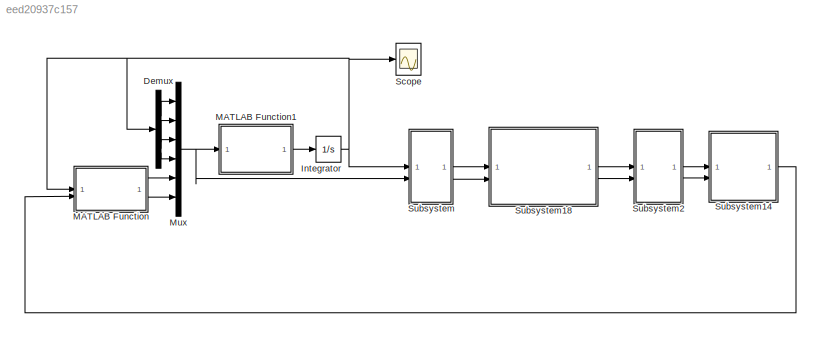
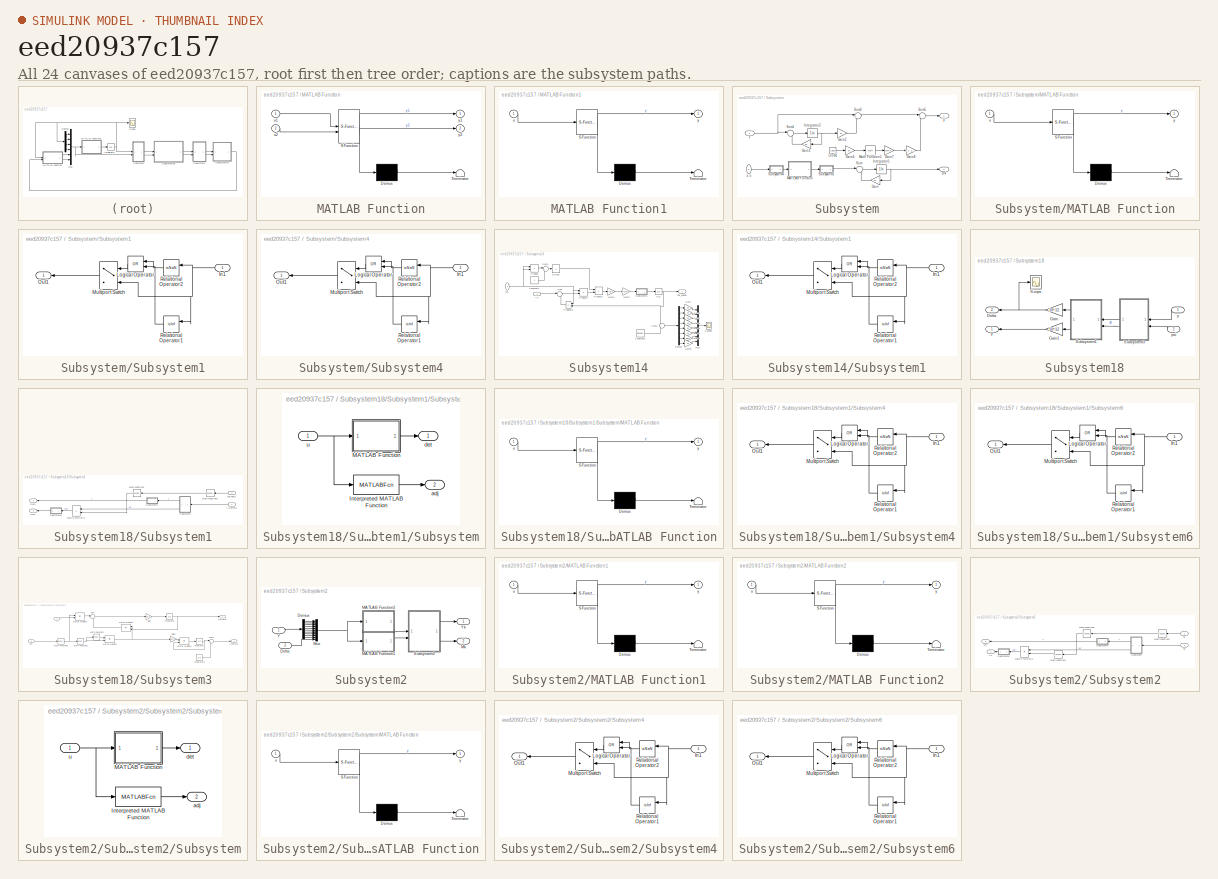
[diagram: thumbnail index - all 24 canvases of the model, root first then tree order]
MODEL slx_eed20937c157
KIND model
CONFIG AbsTol = auto
CONFIG EnableMultiTasking = off
CONFIG FixedStep = 10^-5
CONFIG MaxStep = auto
CONFIG MinStep = auto
CONFIG RelTol = 1e-3
CONFIG SampleTimeConstraint = Unconstrained
CONFIG SolverName = ode1
CONFIG StartTime = 0.0
CONFIG StopTime = 25
BLOCK [Demux] Demux
BLOCK [Integrator] Integrator
  InitialCondition = [-1; 1;0.2;-0.2]*100
BLOCK [SubSystem] MATLAB Function
  ErrorFcn = Stateflow.Translate.translate
  PermitHierarchicalResolution = ExplicitOnly
  SFBlockType = MATLAB Function
  TreatAsAtomicUnit = on
BLOCK [Demux] MATLAB Function/ Demux 
  Outputs = 1
BLOCK [S-Function] MATLAB Function/ SFunction 
  EnableBusSupport = on
  FunctionName = sf_sfun
  PortCounts = [2 3]
  SFcnIsStateOwnerBlock = off
  SFunctionDeploymentMode = off
  Tag = Stateflow S-Function 2
BLOCK [Terminator] MATLAB Function/ Terminator 
BLOCK [Inport] MATLAB Function/u1
BLOCK [Inport] MATLAB Function/u2
  Port = 2
BLOCK [Outport] MATLAB Function/y1
BLOCK [Outport] MATLAB Function/y2
  Port = 2
BLOCK [SubSystem] MATLAB Function1
  ErrorFcn = Stateflow.Translate.translate
  PermitHierarchicalResolution = ExplicitOnly
  SFBlockType = MATLAB Function
  TreatAsAtomicUnit = on
BLOCK [Demux] MATLAB Function1/ Demux 
  Outputs = 1
BLOCK [S-Function] MATLAB Function1/ SFunction 
  EnableBusSupport = on
  FunctionName = sf_sfun
  PortCounts = [1 2]
  SFcnIsStateOwnerBlock = off
  SFunctionDeploymentMode = off
  Tag = Stateflow S-Function 4
BLOCK [Terminator] MATLAB Function1/ Terminator 
BLOCK [Inport] MATLAB Function1/u
BLOCK [Outport] MATLAB Function1/y
BLOCK [Mux] Mux
  DisplayOption = bar
  Inputs = 6
BLOCK [Scope] Scope
  Floating = off
  NumInputPorts = 1
  ScopeSpecificationString = Simulink.scopes.TimeScopeBlockCfg('CurrentConfiguration', extmgr.ConfigurationSet(extmgr.Configuration('Core','General UI',true,'FigureColor',[1 1 1]),extmgr.Configuration('Core','Source UI',true),extmgr.Configuration('Sources','WiredSimulink',true,'DataLoggingVariableName','ScopeData1'),extmgr.Configuration('Visuals','Time Domain',true,'PlotType','Line','SerializedDisplays',{struct('MinYLimReal',...<+1617ch>
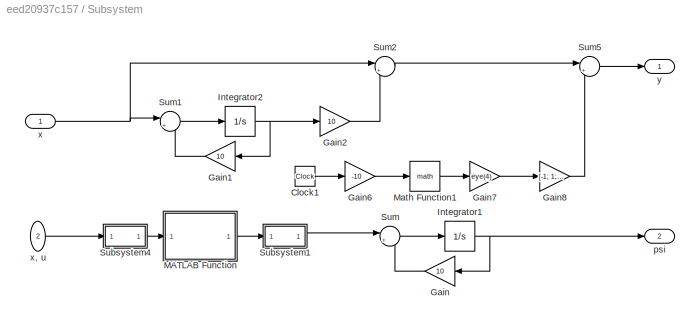
BLOCK [SubSystem] Subsystem
BLOCK [Clock] Subsystem/Clock1
BLOCK [Gain] Subsystem/Gain
  Gain = 10
BLOCK [Gain] Subsystem/Gain1
  Gain = 10
BLOCK [Gain] Subsystem/Gain2
  Gain = 10
BLOCK [Gain] Subsystem/Gain6
  Gain = -10
  NameLocation = top
BLOCK [Gain] Subsystem/Gain7
  Gain = eye(4)
BLOCK [Gain] Subsystem/Gain8
  Gain = [-1; 1;0.2;-0.2]*100
  Multiplication = Matrix(u*K)
BLOCK [Integrator] Subsystem/Integrator1
BLOCK [Integrator] Subsystem/Integrator2
BLOCK [SubSystem] Subsystem/MATLAB Function
  ErrorFcn = Stateflow.Translate.translate
  PermitHierarchicalResolution = ExplicitOnly
  SFBlockType = MATLAB Function
  TreatAsAtomicUnit = on
BLOCK [Demux] Subsystem/MATLAB Function/ Demux 
  Outputs = 1
BLOCK [S-Function] Subsystem/MATLAB Function/ SFunction 
  EnableBusSupport = on
  FunctionName = sf_sfun
  PortCounts = [1 2]
  SFcnIsStateOwnerBlock = off
  SFunctionDeploymentMode = off
  Tag = Stateflow S-Function 5
BLOCK [Terminator] Subsystem/MATLAB Function/ Terminator 
BLOCK [Inport] Subsystem/MATLAB Function/u
BLOCK [Outport] Subsystem/MATLAB Function/y
BLOCK [Math] Subsystem/Math Function1
  SignedPower = on
BLOCK [SubSystem] Subsystem/Subsystem1
BLOCK [Inport] Subsystem/Subsystem1/In1
BLOCK [Logic] Subsystem/Subsystem1/Logical Operator
  AllPortsSameDT = off
  NameLocation = top
  Operator = OR
  OutDataTypeStr = boolean
BLOCK [MultiPortSwitch] Subsystem/Subsystem1/Multiport Switch
  DataPortIndices = {1,0}
  DataPortOrder = Specify indices
  InputSameDT = off
  NameLocation = top
  SaturateOnIntegerOverflow = off
BLOCK [Outport] Subsystem/Subsystem1/Out1
BLOCK [RelationalOperator] Subsystem/Subsystem1/Relational Operator1
  InputSameDT = off
  Operator = isInf
  OutDataTypeStr = boolean
  RndMeth = Simplest
BLOCK [RelationalOperator] Subsystem/Subsystem1/Relational Operator2
  InputSameDT = off
  Operator = isNaN
  OutDataTypeStr = boolean
  RndMeth = Simplest
BLOCK [SubSystem] Subsystem/Subsystem4
BLOCK [Inport] Subsystem/Subsystem4/In1
BLOCK [Logic] Subsystem/Subsystem4/Logical Operator
  AllPortsSameDT = off
  NameLocation = top
  Operator = OR
  OutDataTypeStr = boolean
BLOCK [MultiPortSwitch] Subsystem/Subsystem4/Multiport Switch
  DataPortIndices = {1,0}
  DataPortOrder = Specify indices
  InputSameDT = off
  NameLocation = top
  SaturateOnIntegerOverflow = off
BLOCK [Outport] Subsystem/Subsystem4/Out1
BLOCK [RelationalOperator] Subsystem/Subsystem4/Relational Operator1
  InputSameDT = off
  Operator = isInf
  OutDataTypeStr = boolean
  RndMeth = Simplest
BLOCK [RelationalOperator] Subsystem/Subsystem4/Relational Operator2
  InputSameDT = off
  Operator = isNaN
  OutDataTypeStr = boolean
  RndMeth = Simplest
BLOCK [Sum] Subsystem/Sum
  Inputs = |+-
BLOCK [Sum] Subsystem/Sum1
  Inputs = |+-
BLOCK [Sum] Subsystem/Sum2
  Inputs = |+-
BLOCK [Sum] Subsystem/Sum5
  Inputs = |+-
BLOCK [Outport] Subsystem/psi
  Port = 2
BLOCK [Inport] Subsystem/x
BLOCK [Inport] Subsystem/x, u
  NameLocation = top
  Port = 2
BLOCK [Outport] Subsystem/y
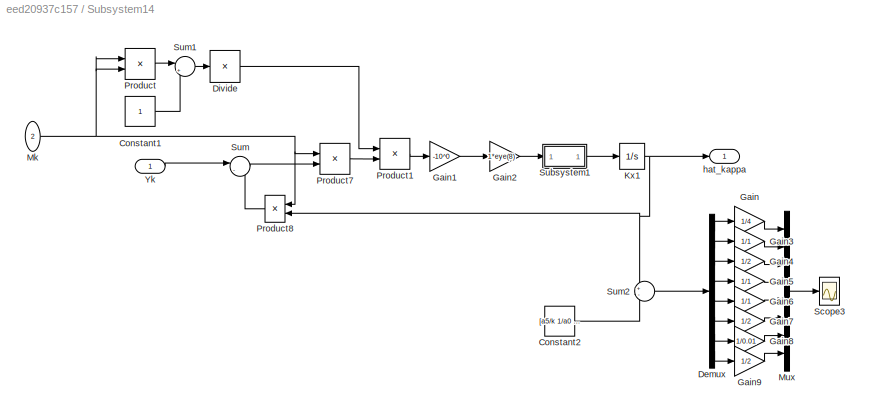
BLOCK [SubSystem] Subsystem14
BLOCK [Constant] Subsystem14/Constant1
BLOCK [Constant] Subsystem14/Constant2
  Value = [a5/k 1/a0 a1 a7 a2 a3 a4 3-a6]'
BLOCK [Demux] Subsystem14/Demux
  Outputs = 8
BLOCK [Product] Subsystem14/Divide
  Inputs = /
BLOCK [Gain] Subsystem14/Gain
  Gain = 1/4
BLOCK [Gain] Subsystem14/Gain1
  Gain = -10^0
BLOCK [Gain] Subsystem14/Gain2
  Gain = 1*eye(8)
  Multiplication = Matrix(K*u)
BLOCK [Gain] Subsystem14/Gain3
  Gain = 1/1
BLOCK [Gain] Subsystem14/Gain4
  Gain = 1/2
BLOCK [Gain] Subsystem14/Gain5
  Gain = 1/1
BLOCK [Gain] Subsystem14/Gain6
  Gain = 1/1
BLOCK [Gain] Subsystem14/Gain7
  Gain = 1/2
BLOCK [Gain] Subsystem14/Gain8
  Gain = 1/0.01
BLOCK [Gain] Subsystem14/Gain9
  Gain = 1/2
BLOCK [Integrator] Subsystem14/Kx1
  InitialCondition = [5 0 0 0 0 0 0 0]'
BLOCK [Inport] Subsystem14/Mk
  NameLocation = top
  Port = 2
BLOCK [Mux] Subsystem14/Mux
  DisplayOption = bar
  Inputs = 8
BLOCK [Product] Subsystem14/Product
BLOCK [Product] Subsystem14/Product1
BLOCK [Product] Subsystem14/Product7
BLOCK [Product] Subsystem14/Product8
  NameLocation = top
BLOCK [Scope] Subsystem14/Scope3
  Floating = off
  NumInputPorts = 1
  ScopeSpecificationString = Simulink.scopes.TimeScopeBlockCfg('CurrentConfiguration', extmgr.ConfigurationSet(extmgr.Configuration('Core','General UI',true,'FigureColor',[1 1 1]),extmgr.Configuration('Core','Source UI',true),extmgr.Configuration('Sources','WiredSimulink',true,'DataLoggingVariableName','ScopeData4'),extmgr.Configuration('Visuals','Time Domain',true,'PlotType','Line','SerializedDisplays',{struct('MinYLimReal',...<+1720ch>
BLOCK [SubSystem] Subsystem14/Subsystem1
BLOCK [Inport] Subsystem14/Subsystem1/In1
BLOCK [Logic] Subsystem14/Subsystem1/Logical Operator
  AllPortsSameDT = off
  NameLocation = top
  Operator = OR
  OutDataTypeStr = boolean
BLOCK [MultiPortSwitch] Subsystem14/Subsystem1/Multiport Switch
  DataPortIndices = {1,0}
  DataPortOrder = Specify indices
  InputSameDT = off
  NameLocation = top
  SaturateOnIntegerOverflow = off
BLOCK [Outport] Subsystem14/Subsystem1/Out1
BLOCK [RelationalOperator] Subsystem14/Subsystem1/Relational Operator1
  InputSameDT = off
  Operator = isInf
  OutDataTypeStr = boolean
  RndMeth = Simplest
BLOCK [RelationalOperator] Subsystem14/Subsystem1/Relational Operator2
  InputSameDT = off
  Operator = isNaN
  OutDataTypeStr = boolean
  RndMeth = Simplest
BLOCK [Sum] Subsystem14/Sum
  Inputs = |-+
BLOCK [Sum] Subsystem14/Sum1
  Inputs = |++
BLOCK [Sum] Subsystem14/Sum2
  Inputs = +-
BLOCK [Inport] Subsystem14/Yk
BLOCK [Outport] Subsystem14/hat_kappa
BLOCK [SubSystem] Subsystem18
BLOCK [Outport] Subsystem18/Delta
  NameLocation = top
  Port = 2
BLOCK [Gain] Subsystem18/Gain
  Gain = 10^12
  NameLocation = top
BLOCK [Gain] Subsystem18/Gain1
  Gain = 10^12
  NameLocation = top
BLOCK [Scope] Subsystem18/Scope
  Floating = off
  NumInputPorts = 1
  ScopeSpecificationString = Simulink.scopes.TimeScopeBlockCfg('CurrentConfiguration', extmgr.ConfigurationSet(extmgr.Configuration('Core','General UI',true,'FigureColor',[1 1 1]),extmgr.Configuration('Core','Source UI',true),extmgr.Configuration('Sources','WiredSimulink',true,'DataLoggingVariableName','ScopeData1'),extmgr.Configuration('Visuals','Time Domain',true,'PlotType','Line','SerializedDisplays',{struct('MinYLimReal',...<+1576ch>
BLOCK [SubSystem] Subsystem18/Subsystem1
  NameLocation = top
BLOCK [Inport] Subsystem18/Subsystem1/I-Summa
  Port = 2
BLOCK [Math] Subsystem18/Subsystem1/Math Function1
  NameLocation = top
  Operator = transpose
  SignedPower = on
BLOCK [Math] Subsystem18/Subsystem1/Math Function2
  NameLocation = top
  Operator = transpose
  SignedPower = on
BLOCK [Product] Subsystem18/Subsystem1/Matrix Multiply1
  Multiplication = Matrix(*)
  NameLocation = top
BLOCK [Outport] Subsystem18/Subsystem1/Out1
BLOCK [Outport] Subsystem18/Subsystem1/Out2
  Port = 2
BLOCK [SubSystem] Subsystem18/Subsystem1/Subsystem
  NameLocation = top
BLOCK [MATLABFcn] Subsystem18/Subsystem1/Subsystem/Interpreted MATLAB Function
  MATLABFcn = adjoint(u)
  Output1D = off
BLOCK [SubSystem] Subsystem18/Subsystem1/Subsystem/MATLAB Function
  ErrorFcn = Stateflow.Translate.translate
  PermitHierarchicalResolution = ExplicitOnly
  SFBlockType = MATLAB Function
  TreatAsAtomicUnit = on
BLOCK [Demux] Subsystem18/Subsystem1/Subsystem/MATLAB Function/ Demux 
  Outputs = 1
BLOCK [S-Function] Subsystem18/Subsystem1/Subsystem/MATLAB Function/ SFunction 
  EnableBusSupport = on
  FunctionName = sf_sfun
  PortCounts = [1 2]
  SFcnIsStateOwnerBlock = off
  SFunctionDeploymentMode = off
  Tag = Stateflow S-Function 3
BLOCK [Terminator] Subsystem18/Subsystem1/Subsystem/MATLAB Function/ Terminator 
BLOCK [Inport] Subsystem18/Subsystem1/Subsystem/MATLAB Function/u
BLOCK [Outport] Subsystem18/Subsystem1/Subsystem/MATLAB Function/y
BLOCK [Outport] Subsystem18/Subsystem1/Subsystem/adj
  Port = 2
BLOCK [Outport] Subsystem18/Subsystem1/Subsystem/det
BLOCK [Inport] Subsystem18/Subsystem1/Subsystem/u
BLOCK [SubSystem] Subsystem18/Subsystem1/Subsystem4
BLOCK [Inport] Subsystem18/Subsystem1/Subsystem4/In1
BLOCK [Logic] Subsystem18/Subsystem1/Subsystem4/Logical Operator
  AllPortsSameDT = off
  NameLocation = top
  Operator = OR
  OutDataTypeStr = boolean
BLOCK [MultiPortSwitch] Subsystem18/Subsystem1/Subsystem4/Multiport Switch
  DataPortIndices = {1,0}
  DataPortOrder = Specify indices
  InputSameDT = off
  NameLocation = top
  SaturateOnIntegerOverflow = off
BLOCK [Outport] Subsystem18/Subsystem1/Subsystem4/Out1
BLOCK [RelationalOperator] Subsystem18/Subsystem1/Subsystem4/Relational Operator1
  InputSameDT = off
  Operator = isInf
  OutDataTypeStr = boolean
  RndMeth = Simplest
BLOCK [RelationalOperator] Subsystem18/Subsystem1/Subsystem4/Relational Operator2
  InputSameDT = off
  Operator = isNaN
  OutDataTypeStr = boolean
  RndMeth = Simplest
BLOCK [SubSystem] Subsystem18/Subsystem1/Subsystem6
BLOCK [Inport] Subsystem18/Subsystem1/Subsystem6/In1
BLOCK [Logic] Subsystem18/Subsystem1/Subsystem6/Logical Operator
  AllPortsSameDT = off
  NameLocation = top
  Operator = OR
  OutDataTypeStr = boolean
BLOCK [MultiPortSwitch] Subsystem18/Subsystem1/Subsystem6/Multiport Switch
  DataPortIndices = {1,0}
  DataPortOrder = Specify indices
  InputSameDT = off
  NameLocation = top
  SaturateOnIntegerOverflow = off
BLOCK [Outport] Subsystem18/Subsystem1/Subsystem6/Out1
BLOCK [RelationalOperator] Subsystem18/Subsystem1/Subsystem6/Relational Operator1
  InputSameDT = off
  Operator = isInf
  OutDataTypeStr = boolean
  RndMeth = Simplest
BLOCK [RelationalOperator] Subsystem18/Subsystem1/Subsystem6/Relational Operator2
  InputSameDT = off
  Operator = isNaN
  OutDataTypeStr = boolean
  RndMeth = Simplest
BLOCK [Inport] Subsystem18/Subsystem1/vartheta
BLOCK [SubSystem] Subsystem18/Subsystem3
  NameLocation = top
BLOCK [Gain] Subsystem18/Subsystem3/Gain
  Gain = -10^0
BLOCK [Gain] Subsystem18/Subsystem3/Gain1
  Gain = -10^0
BLOCK [Outport] Subsystem18/Subsystem3/I-Summa
  Port = 2
BLOCK [Integrator] Subsystem18/Subsystem3/Integrator
  InitialCondition = zeros(10,1)
BLOCK [Integrator] Subsystem18/Subsystem3/Integrator1
  InitialCondition = eye(10)
BLOCK [Integrator] Subsystem18/Subsystem3/Integrator2
  InitialCondition = eye(10)
BLOCK [Math] Subsystem18/Subsystem3/Math Function1
  Operator = transpose
BLOCK [Math] Subsystem18/Subsystem3/Math Function2
  Operator = transpose
BLOCK [Math] Subsystem18/Subsystem3/Math Function3
  Operator = transpose
BLOCK [Product] Subsystem18/Subsystem3/Matrix Multiply1
  Multiplication = Matrix(*)
  NameLocation = top
BLOCK [Product] Subsystem18/Subsystem3/Matrix Multiply2
  Multiplication = Matrix(*)
BLOCK [Product] Subsystem18/Subsystem3/Matrix Multiply4
  Multiplication = Matrix(*)
BLOCK [Product] Subsystem18/Subsystem3/Matrix Multiply5
  Multiplication = Matrix(*)
BLOCK [Sum] Subsystem18/Subsystem3/Sum
  Inputs = |-+
BLOCK [Sum] Subsystem18/Subsystem3/Sum1
  Inputs = |-+
BLOCK [Inport] Subsystem18/Subsystem3/psi
  NameLocation = top
  Port = 2
BLOCK [Outport] Subsystem18/Subsystem3/vartheta
BLOCK [Inport] Subsystem18/Subsystem3/y
BLOCK [Outport] Subsystem18/Y
  NameLocation = top
BLOCK [Inport] Subsystem18/psi
  NameLocation = top
  Port = 2
BLOCK [Inport] Subsystem18/y
  NameLocation = top
BLOCK [SubSystem] Subsystem2
BLOCK [Inport] Subsystem2/Delta
  Port = 2
BLOCK [Demux] Subsystem2/Demux
  Outputs = 10
BLOCK [SubSystem] Subsystem2/MATLAB Function1
  ErrorFcn = Stateflow.Translate.translate
  PermitHierarchicalResolution = ExplicitOnly
  SFBlockType = MATLAB Function
  TreatAsAtomicUnit = on
BLOCK [Demux] Subsystem2/MATLAB Function1/ Demux 
  Outputs = 1
BLOCK [S-Function] Subsystem2/MATLAB Function1/ SFunction 
  EnableBusSupport = on
  FunctionName = sf_sfun
  PortCounts = [1 2]
  SFcnIsStateOwnerBlock = off
  SFunctionDeploymentMode = off
  Tag = Stateflow S-Function 6
BLOCK [Terminator] Subsystem2/MATLAB Function1/ Terminator 
BLOCK [Inport] Subsystem2/MATLAB Function1/u
BLOCK [Outport] Subsystem2/MATLAB Function1/y
BLOCK [SubSystem] Subsystem2/MATLAB Function2
  ErrorFcn = Stateflow.Translate.translate
  PermitHierarchicalResolution = ExplicitOnly
  SFBlockType = MATLAB Function
  TreatAsAtomicUnit = on
BLOCK [Demux] Subsystem2/MATLAB Function2/ Demux 
  Outputs = 1
BLOCK [S-Function] Subsystem2/MATLAB Function2/ SFunction 
  EnableBusSupport = on
  FunctionName = sf_sfun
  PortCounts = [1 2]
  SFcnIsStateOwnerBlock = off
  SFunctionDeploymentMode = off
  Tag = Stateflow S-Function 7
BLOCK [Terminator] Subsystem2/MATLAB Function2/ Terminator 
BLOCK [Inport] Subsystem2/MATLAB Function2/u
BLOCK [Outport] Subsystem2/MATLAB Function2/y
BLOCK [Outport] Subsystem2/Mk
  Port = 2
BLOCK [Mux] Subsystem2/Mux
  DisplayOption = bar
  Inputs = 11
BLOCK [SubSystem] Subsystem2/Subsystem2
BLOCK [Math] Subsystem2/Subsystem2/Math Function1
  NameLocation = top
  Operator = transpose
  SignedPower = on
BLOCK [Math] Subsystem2/Subsystem2/Math Function2
  NameLocation = top
  Operator = transpose
  SignedPower = on
BLOCK [Math] Subsystem2/Subsystem2/Math Function3
  NameLocation = top
  Operator = transpose
  SignedPower = on
BLOCK [Product] Subsystem2/Subsystem2/Matrix Multiply1
  Multiplication = Matrix(*)
  NameLocation = top
BLOCK [Outport] Subsystem2/Subsystem2/Mk
  Port = 2
BLOCK [SubSystem] Subsystem2/Subsystem2/Subsystem
  NameLocation = top
BLOCK [MATLABFcn] Subsystem2/Subsystem2/Subsystem/Interpreted MATLAB Function
  MATLABFcn = adjoint(u)
  Output1D = off
BLOCK [SubSystem] Subsystem2/Subsystem2/Subsystem/MATLAB Function
  ErrorFcn = Stateflow.Translate.translate
  PermitHierarchicalResolution = ExplicitOnly
  SFBlockType = MATLAB Function
  TreatAsAtomicUnit = on
BLOCK [Demux] Subsystem2/Subsystem2/Subsystem/MATLAB Function/ Demux 
  Outputs = 1
BLOCK [S-Function] Subsystem2/Subsystem2/Subsystem/MATLAB Function/ SFunction 
  EnableBusSupport = on
  FunctionName = sf_sfun
  PortCounts = [1 2]
  SFcnIsStateOwnerBlock = off
  SFunctionDeploymentMode = off
  Tag = Stateflow S-Function 9
BLOCK [Terminator] Subsystem2/Subsystem2/Subsystem/MATLAB Function/ Terminator 
BLOCK [Inport] Subsystem2/Subsystem2/Subsystem/MATLAB Function/u
BLOCK [Outport] Subsystem2/Subsystem2/Subsystem/MATLAB Function/y
BLOCK [Outport] Subsystem2/Subsystem2/Subsystem/adj
  Port = 2
BLOCK [Outport] Subsystem2/Subsystem2/Subsystem/det
BLOCK [Inport] Subsystem2/Subsystem2/Subsystem/u
BLOCK [SubSystem] Subsystem2/Subsystem2/Subsystem4
BLOCK [Inport] Subsystem2/Subsystem2/Subsystem4/In1
BLOCK [Logic] Subsystem2/Subsystem2/Subsystem4/Logical Operator
  AllPortsSameDT = off
  NameLocation = top
  Operator = OR
  OutDataTypeStr = boolean
BLOCK [MultiPortSwitch] Subsystem2/Subsystem2/Subsystem4/Multiport Switch
  DataPortIndices = {1,0}
  DataPortOrder = Specify indices
  InputSameDT = off
  NameLocation = top
  SaturateOnIntegerOverflow = off
BLOCK [Outport] Subsystem2/Subsystem2/Subsystem4/Out1
BLOCK [RelationalOperator] Subsystem2/Subsystem2/Subsystem4/Relational Operator1
  InputSameDT = off
  Operator = isInf
  OutDataTypeStr = boolean
  RndMeth = Simplest
BLOCK [RelationalOperator] Subsystem2/Subsystem2/Subsystem4/Relational Operator2
  InputSameDT = off
  Operator = isNaN
  OutDataTypeStr = boolean
  RndMeth = Simplest
BLOCK [SubSystem] Subsystem2/Subsystem2/Subsystem6
BLOCK [Inport] Subsystem2/Subsystem2/Subsystem6/In1
BLOCK [Logic] Subsystem2/Subsystem2/Subsystem6/Logical Operator
  AllPortsSameDT = off
  NameLocation = top
  Operator = OR
  OutDataTypeStr = boolean
BLOCK [MultiPortSwitch] Subsystem2/Subsystem2/Subsystem6/Multiport Switch
  DataPortIndices = {1,0}
  DataPortOrder = Specify indices
  InputSameDT = off
  NameLocation = top
  SaturateOnIntegerOverflow = off
BLOCK [Outport] Subsystem2/Subsystem2/Subsystem6/Out1
BLOCK [RelationalOperator] Subsystem2/Subsystem2/Subsystem6/Relational Operator1
  InputSameDT = off
  Operator = isInf
  OutDataTypeStr = boolean
  RndMeth = Simplest
BLOCK [RelationalOperator] Subsystem2/Subsystem2/Subsystem6/Relational Operator2
  InputSameDT = off
  Operator = isNaN
  OutDataTypeStr = boolean
  RndMeth = Simplest
BLOCK [Inport] Subsystem2/Subsystem2/Tg
  Port = 2
BLOCK [Inport] Subsystem2/Subsystem2/Ts
BLOCK [Outport] Subsystem2/Subsystem2/Yk
BLOCK [Inport] Subsystem2/Y
BLOCK [Outport] Subsystem2/Yk
LINE Demux:1 -> Mux:1
LINE Demux:2 -> Mux:2
LINE Demux:3 -> Mux:3
LINE Demux:4 -> Mux:4
NET Integrator:1 -> Demux:1, MATLAB Function:1, Scope:1, Subsystem:1
LINE MATLAB Function1:1 -> Integrator:1
LINE MATLAB Function:1 -> Mux:5
LINE MATLAB Function:2 -> Mux:6
NET Mux:1 -> MATLAB Function1:1, Subsystem:2
LINE Subsystem/Clock1:1 -> Subsystem/Gain6:1
LINE Subsystem/Gain1:1 -> Subsystem/Sum1:2
LINE Subsystem/Gain2:1 -> Subsystem/Sum2:2
LINE Subsystem/Gain6:1 -> Subsystem/Math Function1:1
LINE Subsystem/Gain7:1 -> Subsystem/Gain8:1
LINE Subsystem/Gain8:1 -> Subsystem/Sum5:2
LINE Subsystem/Gain:1 -> Subsystem/Sum:2
NET Subsystem/Integrator1:1 -> Subsystem/Gain:1, Subsystem/psi:1
NET Subsystem/Integrator2:1 -> Subsystem/Gain1:1, Subsystem/Gain2:1
LINE Subsystem/MATLAB Function:1 -> Subsystem/Subsystem1:1
LINE Subsystem/Math Function1:1 -> Subsystem/Gain7:1
NET Subsystem/Subsystem1/In1:1 -> Subsystem/Subsystem1/Multiport Switch:3, Subsystem/Subsystem1/Relational Operator1:1, Subsystem/Subsystem1/Relational Operator2:1
LINE Subsystem/Subsystem1/Logical Operator:1 -> Subsystem/Subsystem1/Multiport Switch:1
LINE Subsystem/Subsystem1/Multiport Switch:1 -> Subsystem/Subsystem1/Out1:1
LINE Subsystem/Subsystem1/Relational Operator1:1 -> Subsystem/Subsystem1/Logical Operator:2
LINE Subsystem/Subsystem1/Relational Operator2:1 -> Subsystem/Subsystem1/Logical Operator:1
LINE Subsystem/Subsystem1:1 -> Subsystem/Sum:1
NET Subsystem/Subsystem4/In1:1 -> Subsystem/Subsystem4/Multiport Switch:3, Subsystem/Subsystem4/Relational Operator1:1, Subsystem/Subsystem4/Relational Operator2:1
LINE Subsystem/Subsystem4/Logical Operator:1 -> Subsystem/Subsystem4/Multiport Switch:1
LINE Subsystem/Subsystem4/Multiport Switch:1 -> Subsystem/Subsystem4/Out1:1
LINE Subsystem/Subsystem4/Relational Operator1:1 -> Subsystem/Subsystem4/Logical Operator:2
LINE Subsystem/Subsystem4/Relational Operator2:1 -> Subsystem/Subsystem4/Logical Operator:1
LINE Subsystem/Subsystem4:1 -> Subsystem/MATLAB Function:1
LINE Subsystem/Sum1:1 -> Subsystem/Integrator2:1
LINE Subsystem/Sum2:1 -> Subsystem/Sum5:1
LINE Subsystem/Sum5:1 -> Subsystem/y:1
LINE Subsystem/Sum:1 -> Subsystem/Integrator1:1
LINE Subsystem/x, u:1 -> Subsystem/Subsystem4:1
NET Subsystem/x:1 -> Subsystem/Sum1:1, Subsystem/Sum2:1
LINE Subsystem14/Constant1:1 -> Subsystem14/Sum1:2
LINE Subsystem14/Constant2:1 -> Subsystem14/Sum2:2
LINE Subsystem14/Demux:1 -> Subsystem14/Gain:1
LINE Subsystem14/Demux:2 -> Subsystem14/Gain3:1
LINE Subsystem14/Demux:3 -> Subsystem14/Gain4:1
LINE Subsystem14/Demux:4 -> Subsystem14/Gain5:1
LINE Subsystem14/Demux:5 -> Subsystem14/Gain6:1
LINE Subsystem14/Demux:6 -> Subsystem14/Gain7:1
LINE Subsystem14/Demux:7 -> Subsystem14/Gain8:1
LINE Subsystem14/Demux:8 -> Subsystem14/Gain9:1
LINE Subsystem14/Divide:1 -> Subsystem14/Product1:1
LINE Subsystem14/Gain1:1 -> Subsystem14/Gain2:1
LINE Subsystem14/Gain2:1 -> Subsystem14/Subsystem1:1
LINE Subsystem14/Gain3:1 -> Subsystem14/Mux:2
LINE Subsystem14/Gain4:1 -> Subsystem14/Mux:3
LINE Subsystem14/Gain5:1 -> Subsystem14/Mux:4
LINE Subsystem14/Gain6:1 -> Subsystem14/Mux:5
LINE Subsystem14/Gain7:1 -> Subsystem14/Mux:6
LINE Subsystem14/Gain8:1 -> Subsystem14/Mux:7
LINE Subsystem14/Gain9:1 -> Subsystem14/Mux:8
LINE Subsystem14/Gain:1 -> Subsystem14/Mux:1
NET Subsystem14/Kx1:1 -> Subsystem14/Product8:2, Subsystem14/Sum2:1, Subsystem14/hat_kappa:1
NET Subsystem14/Mk:1 -> Subsystem14/Product7:1, Subsystem14/Product8:1, Subsystem14/Product:1, Subsystem14/Product:2
LINE Subsystem14/Mux:1 -> Subsystem14/Scope3:1
LINE Subsystem14/Product1:1 -> Subsystem14/Gain1:1
LINE Subsystem14/Product7:1 -> Subsystem14/Product1:2
LINE Subsystem14/Product8:1 -> Subsystem14/Sum:2
LINE Subsystem14/Product:1 -> Subsystem14/Sum1:1
NET Subsystem14/Subsystem1/In1:1 -> Subsystem14/Subsystem1/Multiport Switch:3, Subsystem14/Subsystem1/Relational Operator1:1, Subsystem14/Subsystem1/Relational Operator2:1
LINE Subsystem14/Subsystem1/Logical Operator:1 -> Subsystem14/Subsystem1/Multiport Switch:1
LINE Subsystem14/Subsystem1/Multiport Switch:1 -> Subsystem14/Subsystem1/Out1:1
LINE Subsystem14/Subsystem1/Relational Operator1:1 -> Subsystem14/Subsystem1/Logical Operator:2
LINE Subsystem14/Subsystem1/Relational Operator2:1 -> Subsystem14/Subsystem1/Logical Operator:1
LINE Subsystem14/Subsystem1:1 -> Subsystem14/Kx1:1
LINE Subsystem14/Sum1:1 -> Subsystem14/Divide:1
LINE Subsystem14/Sum2:1 -> Subsystem14/Demux:1
LINE Subsystem14/Sum:1 -> Subsystem14/Product7:2
LINE Subsystem14/Yk:1 -> Subsystem14/Sum:1
LINE Subsystem14:1 -> MATLAB Function:2
LINE Subsystem18/Gain1:1 -> Subsystem18/Y:1
NET Subsystem18/Gain:1 -> Subsystem18/Delta:1, Subsystem18/Scope:1
LINE Subsystem18/Subsystem1/I-Summa:1 -> Subsystem18/Subsystem1/Subsystem:1
LINE Subsystem18/Subsystem1/Math Function1:1 -> Subsystem18/Subsystem1/Matrix Multiply1:2
LINE Subsystem18/Subsystem1/Math Function2:1 -> Subsystem18/Subsystem1/Math Function1:1
LINE Subsystem18/Subsystem1/Matrix Multiply1:1 -> Subsystem18/Subsystem1/Subsystem6:1
LINE Subsystem18/Subsystem1/Subsystem/Interpreted MATLAB Function:1 -> Subsystem18/Subsystem1/Subsystem/adj:1
LINE Subsystem18/Subsystem1/Subsystem/MATLAB Function:1 -> Subsystem18/Subsystem1/Subsystem/det:1
NET Subsystem18/Subsystem1/Subsystem/u:1 -> Subsystem18/Subsystem1/Subsystem/Interpreted MATLAB Function:1, Subsystem18/Subsystem1/Subsystem/MATLAB Function:1
NET Subsystem18/Subsystem1/Subsystem4/In1:1 -> Subsystem18/Subsystem1/Subsystem4/Multiport Switch:3, Subsystem18/Subsystem1/Subsystem4/Relational Operator1:1, Subsystem18/Subsystem1/Subsystem4/Relational Operator2:1
LINE Subsystem18/Subsystem1/Subsystem4/Logical Operator:1 -> Subsystem18/Subsystem1/Subsystem4/Multiport Switch:1
LINE Subsystem18/Subsystem1/Subsystem4/Multiport Switch:1 -> Subsystem18/Subsystem1/Subsystem4/Out1:1
LINE Subsystem18/Subsystem1/Subsystem4/Relational Operator1:1 -> Subsystem18/Subsystem1/Subsystem4/Logical Operator:2
LINE Subsystem18/Subsystem1/Subsystem4/Relational Operator2:1 -> Subsystem18/Subsystem1/Subsystem4/Logical Operator:1
LINE Subsystem18/Subsystem1/Subsystem4:1 -> Subsystem18/Subsystem1/Out1:1
NET Subsystem18/Subsystem1/Subsystem6/In1:1 -> Subsystem18/Subsystem1/Subsystem6/Multiport Switch:3, Subsystem18/Subsystem1/Subsystem6/Relational Operator1:1, Subsystem18/Subsystem1/Subsystem6/Relational Operator2:1
LINE Subsystem18/Subsystem1/Subsystem6/Logical Operator:1 -> Subsystem18/Subsystem1/Subsystem6/Multiport Switch:1
LINE Subsystem18/Subsystem1/Subsystem6/Multiport Switch:1 -> Subsystem18/Subsystem1/Subsystem6/Out1:1
LINE Subsystem18/Subsystem1/Subsystem6/Relational Operator1:1 -> Subsystem18/Subsystem1/Subsystem6/Logical Operator:2
LINE Subsystem18/Subsystem1/Subsystem6/Relational Operator2:1 -> Subsystem18/Subsystem1/Subsystem6/Logical Operator:1
LINE Subsystem18/Subsystem1/Subsystem6:1 -> Subsystem18/Subsystem1/Out2:1
LINE Subsystem18/Subsystem1/Subsystem:1 -> Subsystem18/Subsystem1/Subsystem4:1
LINE Subsystem18/Subsystem1/Subsystem:2 -> Subsystem18/Subsystem1/Matrix Multiply1:1
LINE Subsystem18/Subsystem1/vartheta:1 -> Subsystem18/Subsystem1/Math Function2:1
LINE Subsystem18/Subsystem1:1 -> Subsystem18/Gain:1
LINE Subsystem18/Subsystem1:2 -> Subsystem18/Gain1:1
LINE Subsystem18/Subsystem3/Gain1:1 -> Subsystem18/Subsystem3/Matrix Multiply5:1
LINE Subsystem18/Subsystem3/Gain:1 -> Subsystem18/Subsystem3/Integrator:1
NET Subsystem18/Subsystem3/Integrator1:1 -> Subsystem18/Subsystem3/Matrix Multiply5:2, Subsystem18/Subsystem3/Sum1:1
LINE Subsystem18/Subsystem3/Integrator2:1 -> Subsystem18/Subsystem3/Sum1:2
NET Subsystem18/Subsystem3/Integrator:1 -> Subsystem18/Subsystem3/Matrix Multiply1:2, Subsystem18/Subsystem3/vartheta:1
LINE Subsystem18/Subsystem3/Math Function1:1 -> Subsystem18/Subsystem3/Matrix Multiply2:1
NET Subsystem18/Subsystem3/Math Function2:1 -> Subsystem18/Subsystem3/Math Function1:1, Subsystem18/Subsystem3/Matrix Multiply2:2
NET Subsystem18/Subsystem3/Math Function3:1 -> Subsystem18/Subsystem3/Math Function2:1, Subsystem18/Subsystem3/Matrix Multiply4:1
LINE Subsystem18/Subsystem3/Matrix Multiply1:1 -> Subsystem18/Subsystem3/Sum:2
NET Subsystem18/Subsystem3/Matrix Multiply2:1 -> Subsystem18/Subsystem3/Gain1:1, Subsystem18/Subsystem3/Matrix Multiply1:1
LINE Subsystem18/Subsystem3/Matrix Multiply4:1 -> Subsystem18/Subsystem3/Sum:1
LINE Subsystem18/Subsystem3/Matrix Multiply5:1 -> Subsystem18/Subsystem3/Integrator1:1
LINE Subsystem18/Subsystem3/Sum1:1 -> Subsystem18/Subsystem3/I-Summa:1
LINE Subsystem18/Subsystem3/Sum:1 -> Subsystem18/Subsystem3/Gain:1
LINE Subsystem18/Subsystem3/psi:1 -> Subsystem18/Subsystem3/Math Function3:1
LINE Subsystem18/Subsystem3/y:1 -> Subsystem18/Subsystem3/Matrix Multiply4:2
LINE Subsystem18/Subsystem3:1 -> Subsystem18/Subsystem1:1
LINE Subsystem18/Subsystem3:2 -> Subsystem18/Subsystem1:2
LINE Subsystem18/psi:1 -> Subsystem18/Subsystem3:2
LINE Subsystem18/y:1 -> Subsystem18/Subsystem3:1
LINE Subsystem18:1 -> Subsystem2:1
LINE Subsystem18:2 -> Subsystem2:2
LINE Subsystem2/Delta:1 -> Subsystem2/Mux:11
LINE Subsystem2/Demux:1 -> Subsystem2/Mux:1
LINE Subsystem2/Demux:10 -> Subsystem2/Mux:10
LINE Subsystem2/Demux:2 -> Subsystem2/Mux:2
LINE Subsystem2/Demux:3 -> Subsystem2/Mux:3
LINE Subsystem2/Demux:4 -> Subsystem2/Mux:4
LINE Subsystem2/Demux:5 -> Subsystem2/Mux:5
LINE Subsystem2/Demux:6 -> Subsystem2/Mux:6
LINE Subsystem2/Demux:7 -> Subsystem2/Mux:7
LINE Subsystem2/Demux:8 -> Subsystem2/Mux:8
LINE Subsystem2/Demux:9 -> Subsystem2/Mux:9
LINE Subsystem2/MATLAB Function1:1 -> Subsystem2/Subsystem2:2
LINE Subsystem2/MATLAB Function2:1 -> Subsystem2/Subsystem2:1
NET Subsystem2/Mux:1 -> Subsystem2/MATLAB Function1:1, Subsystem2/MATLAB Function2:1
LINE Subsystem2/Subsystem2/Math Function1:1 -> Subsystem2/Subsystem2/Math Function3:1
LINE Subsystem2/Subsystem2/Math Function2:1 -> Subsystem2/Subsystem2/Math Function1:1
LINE Subsystem2/Subsystem2/Math Function3:1 -> Subsystem2/Subsystem2/Matrix Multiply1:2
LINE Subsystem2/Subsystem2/Matrix Multiply1:1 -> Subsystem2/Subsystem2/Subsystem6:1
LINE Subsystem2/Subsystem2/Subsystem/Interpreted MATLAB Function:1 -> Subsystem2/Subsystem2/Subsystem/adj:1
LINE Subsystem2/Subsystem2/Subsystem/MATLAB Function:1 -> Subsystem2/Subsystem2/Subsystem/det:1
NET Subsystem2/Subsystem2/Subsystem/u:1 -> Subsystem2/Subsystem2/Subsystem/Interpreted MATLAB Function:1, Subsystem2/Subsystem2/Subsystem/MATLAB Function:1
NET Subsystem2/Subsystem2/Subsystem4/In1:1 -> Subsystem2/Subsystem2/Subsystem4/Multiport Switch:3, Subsystem2/Subsystem2/Subsystem4/Relational Operator1:1, Subsystem2/Subsystem2/Subsystem4/Relational Operator2:1
LINE Subsystem2/Subsystem2/Subsystem4/Logical Operator:1 -> Subsystem2/Subsystem2/Subsystem4/Multiport Switch:1
LINE Subsystem2/Subsystem2/Subsystem4/Multiport Switch:1 -> Subsystem2/Subsystem2/Subsystem4/Out1:1
LINE Subsystem2/Subsystem2/Subsystem4/Relational Operator1:1 -> Subsystem2/Subsystem2/Subsystem4/Logical Operator:2
LINE Subsystem2/Subsystem2/Subsystem4/Relational Operator2:1 -> Subsystem2/Subsystem2/Subsystem4/Logical Operator:1
LINE Subsystem2/Subsystem2/Subsystem4:1 -> Subsystem2/Subsystem2/Mk:1
NET Subsystem2/Subsystem2/Subsystem6/In1:1 -> Subsystem2/Subsystem2/Subsystem6/Multiport Switch:3, Subsystem2/Subsystem2/Subsystem6/Relational Operator1:1, Subsystem2/Subsystem2/Subsystem6/Relational Operator2:1
LINE Subsystem2/Subsystem2/Subsystem6/Logical Operator:1 -> Subsystem2/Subsystem2/Subsystem6/Multiport Switch:1
LINE Subsystem2/Subsystem2/Subsystem6/Multiport Switch:1 -> Subsystem2/Subsystem2/Subsystem6/Out1:1
LINE Subsystem2/Subsystem2/Subsystem6/Relational Operator1:1 -> Subsystem2/Subsystem2/Subsystem6/Logical Operator:2
LINE Subsystem2/Subsystem2/Subsystem6/Relational Operator2:1 -> Subsystem2/Subsystem2/Subsystem6/Logical Operator:1
LINE Subsystem2/Subsystem2/Subsystem6:1 -> Subsystem2/Subsystem2/Yk:1
LINE Subsystem2/Subsystem2/Subsystem:1 -> Subsystem2/Subsystem2/Subsystem4:1
LINE Subsystem2/Subsystem2/Subsystem:2 -> Subsystem2/Subsystem2/Matrix Multiply1:1
LINE Subsystem2/Subsystem2/Tg:1 -> Subsystem2/Subsystem2/Subsystem:1
LINE Subsystem2/Subsystem2/Ts:1 -> Subsystem2/Subsystem2/Math Function2:1
LINE Subsystem2/Subsystem2:1 -> Subsystem2/Yk:1
LINE Subsystem2/Subsystem2:2 -> Subsystem2/Mk:1
LINE Subsystem2/Y:1 -> Subsystem2/Demux:1
LINE Subsystem2:1 -> Subsystem14:1
LINE Subsystem2:2 -> Subsystem14:2
LINE Subsystem:1 -> Subsystem18:1
LINE Subsystem:2 -> Subsystem18:2
note: NET lines group one-source signal fan-out (src -> all destinations, sorted); 1:1 wires keep LINE
CHART Subsystem18/Subsystem1/Subsystem/MATLAB Function states=1 transitions=1
  STATE_LABEL 'eML_blk_kernel()'
  STATE_LABEL 'SCRIPT:\nfunction y = fcn(u)\n\ny = det(u);\n'
CHART MATLAB Function1 states=1 transitions=1
  STATE_LABEL 'eML_blk_kernel()'
  STATE_LABEL 'SCRIPT:\nfunction y = fcn(u)\na0=1;\na1=2;\na2=1;\na3=2;\na4=0.01;\na5=1;\nk=1;\na6=1;\na7=1;\ny = [u(2); a0*u(4)-a1*sin(u(1))-(a2+a3*sin(u(1)))*u(3)-a4*u(3)^2; -k*u(3)+a5*sin(u(1))*u(2)+k*u(5); -a6*u(4)-a7*u(2)+u(6)];\n'
CHART Subsystem/MATLAB Function states=1 transitions=1
  STATE_LABEL 'eML_blk_kernel()'
  STATE_LABEL 'SCRIPT:\nfunction y = fcn(u)\n\ny = [u(2) 0 0 0 0 0 0 0 0 0;\n 0 u(4) -sin(u(1)) -u(3) -sin(u(1))*u(3) -u(3)*u(3) 0 0 0 0;\n 0 0 0 0 0 0 -u(3)+u(5) u(2)*sin(u(1)) 0 0;\n u(6) 0 0 0 0 0 0 0 -u(4) -u(2)];;\n'
CHART Subsystem2/MATLAB Function1 states=1 transitions=1
  STATE_LABEL 'eML_blk_kernel()'
  STATE_LABEL 'SCRIPT:\nfunction y = fcn(u)\ny = diag([u(7) u(2)*u(2) u(11)*ones(1,6)]);\n'
CHART Subsystem2/MATLAB Function2 states=1 transitions=1
  STATE_LABEL 'eML_blk_kernel()'
  STATE_LABEL 'SCRIPT:\nfunction y = fcn(u)\ny = [u(8) u(11)*u(2) u(3) u(10) u(4) u(5) u(6) 3*u(11)-u(9)];\n'
CHART Subsystem2/Subsystem2/Subsystem/MATLAB Function states=1 transitions=1
  STATE_LABEL 'eML_blk_kernel()'
  STATE_LABEL 'SCRIPT:\nfunction y = fcn(u)\n\ny = det(u);\n'
CHART MATLAB Function states=1 transitions=1
  STATE_LABEL 'eML_blk_kernel()'
  STATE_LABEL 'SCRIPT:\nfunction [y1, y2] = fcn(u1, u2)\n\n\ny2 = -u2(2)*u1(1)+3*u2(3)*sin(u1(1))-u2(2)*3*u1(2)-u2(4)*u2(2)*u1(2)-u2(3)*cos(u1(1))*u1(2)+2*u2(2)*u2(5)*u1(3)+2*u2(6)*u2(2)*sin(u1(1))*u1(3)+2*u2(7)*u2(2)*u1(3)*u1(3)-u2(8)*u1(4);\ny1 = -1*u2(1)*sin(u1(1))*u1(2);'
CHART  states=0 transitions=0
CHART  states=0 transitions=0
CHART  states=0 transitions=0
CHART  states=0 transitions=0
CHART  states=0 transitions=0
CHART  states=0 transitions=0
CHART  states=0 transitions=0
